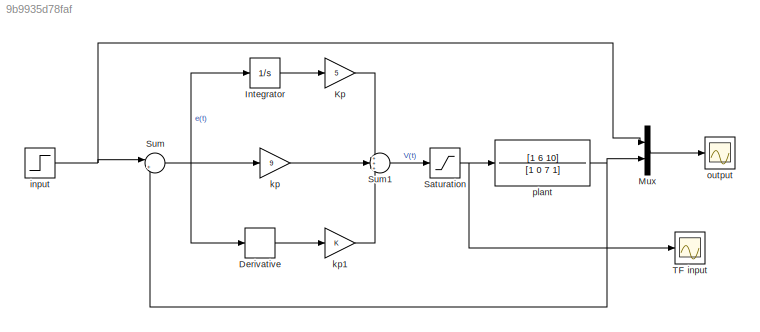
MODEL slx_9b9935d78faf
KIND model
CONFIG AbsTol = auto
CONFIG EnableMultiTasking = off
CONFIG FixedStep = 0.001
CONFIG MaxStep = auto
CONFIG MinStep = auto
CONFIG RelTol = 1e-3
CONFIG SampleTimeConstraint = Unconstrained
CONFIG SolverName = FixedStepAuto
CONFIG StartTime = 0.0
CONFIG StopTime = 20
BLOCK [Derivative] Derivative
BLOCK [Integrator] Integrator
  Ports = [1, 1]
BLOCK [Gain] Kp
  Gain = 5
BLOCK [Mux] Mux
  DisplayOption = bar
  Inputs = 2
  Ports = [2, 1]
BLOCK [Saturate] Saturation
  LowerLimit = -2
  UpperLimit = 2
BLOCK [Sum] Sum
  Inputs = |+-
  Ports = [2, 1]
BLOCK [Sum] Sum1
  Inputs = +++
  Ports = [3, 1]
BLOCK [Scope] TF input
  Floating = off
  NumInputPorts = 1
  Ports = [1]
  ScopeSpecificationString = Simulink.scopes.TimeScopeBlockCfg('CurrentConfiguration', extmgr.ConfigurationSet(extmgr.Configuration('Core','General UI',true),extmgr.Configuration('Core','Source UI',true),extmgr.Configuration('Sources','WiredSimulink',true,'DataLoggingVariableName','ScopeData1'),extmgr.Configuration('Visuals','Time Domain',true,'SerializedDisplays',{struct('MinYLimReal','-0.95377','MaxYLimReal','2.3282','YLabe...<+1437ch>
BLOCK [Step] input
  SampleTime = 0
BLOCK [Gain] kp
  Gain = 9
BLOCK [Gain] kp1
BLOCK [Scope] output
  Floating = off
  NumInputPorts = 1
  Ports = [1]
  ScopeSpecificationString = Simulink.scopes.TimeScopeBlockCfg('CurrentConfiguration', extmgr.ConfigurationSet(extmgr.Configuration('Core','General UI',true),extmgr.Configuration('Core','Source UI',true),extmgr.Configuration('Sources','WiredSimulink',true),extmgr.Configuration('Visuals','Time Domain',true,'SerializedDisplays',{struct('MinYLimReal','-0.14033','MaxYLimReal','1.26296','YLabelReal','','MinYLimMag','0.00000','MaxY...<+1406ch>
BLOCK [TransferFcn] plant
  Denominator = [1 0 7 1]
  Numerator = [1 6 10]
LINE Derivative:1 -> kp1:1
LINE Integrator:1 -> Kp:1
LINE Kp:1 -> Sum1:1
LINE Mux:1 -> output:1
NET Saturation:1 -> TF input:1, plant:1
LINE Sum1:1 -> Saturation:1
NET Sum:1 -> Derivative:1, Integrator:1, kp:1
NET input:1 -> Mux:1, Sum:1
LINE kp1:1 -> Sum1:3
LINE kp:1 -> Sum1:2
NET plant:1 -> Mux:2, Sum:2
note: NET lines group one-source signal fan-out (src -> all destinations, sorted); 1:1 wires keep LINE
